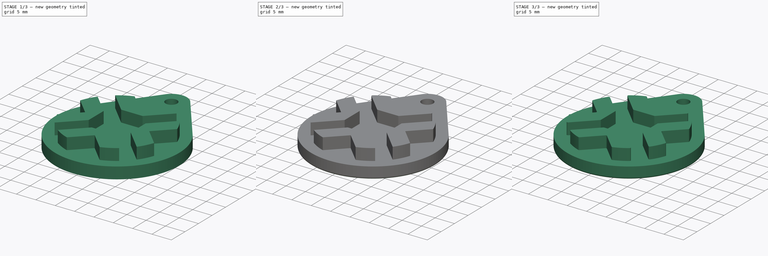
[diagram: build sequence overview — one tinted view per stage of 3, left to right]
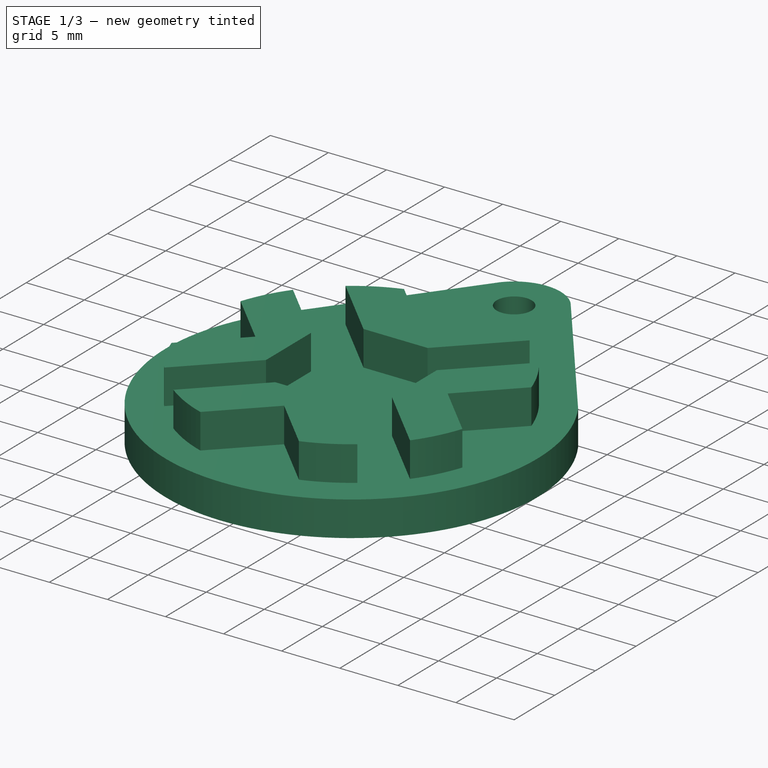
[diagram: stage 1 of 3 — iso view after this stage's code; geometry added in this stage tinted green]
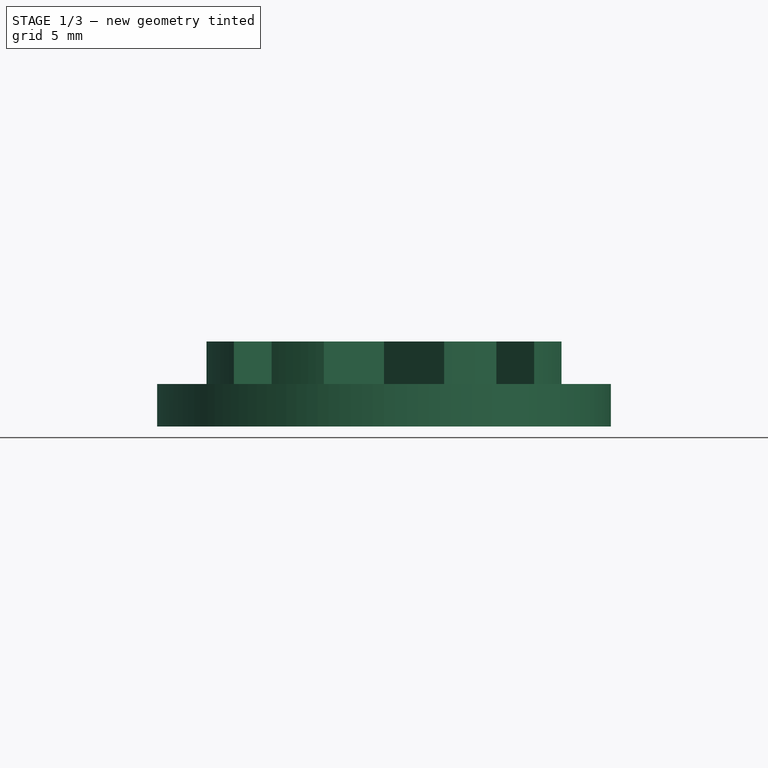
[diagram: stage 1 of 3 — front view after this stage's code; geometry added in this stage tinted green]
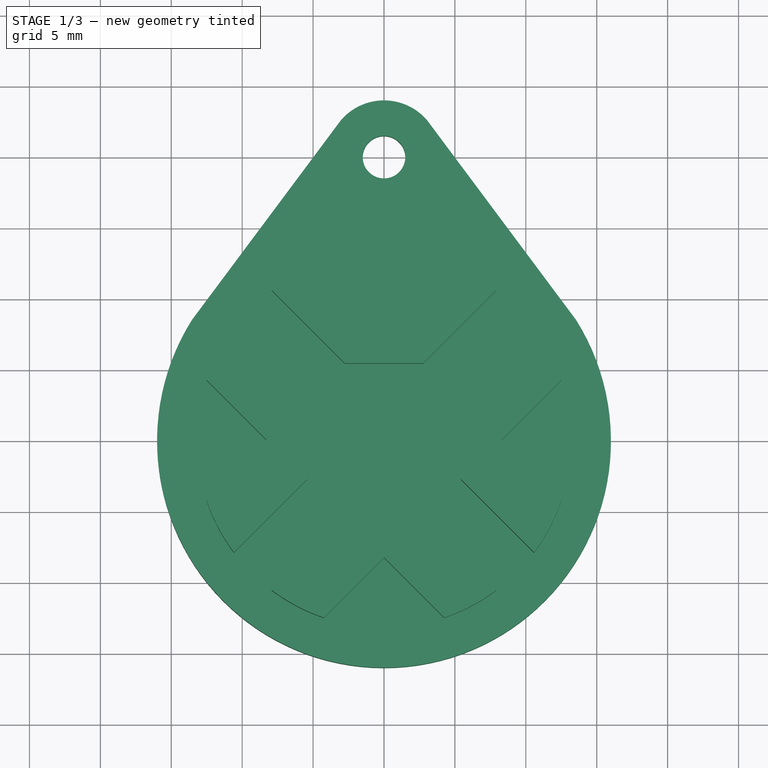
[diagram: stage 1 of 3 — top view after this stage's code; geometry added in this stage tinted green]
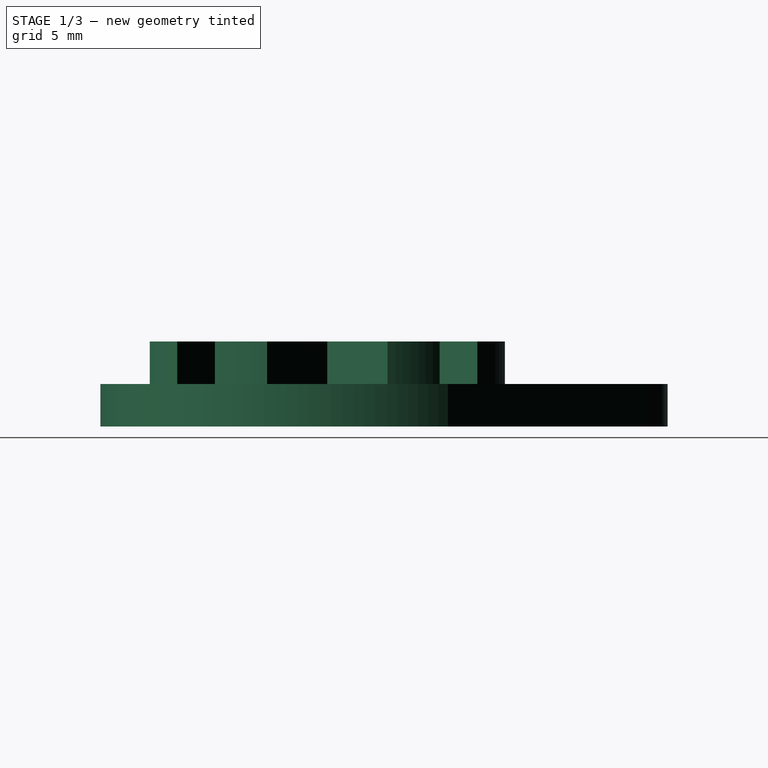
[diagram: stage 1 of 3 — right view after this stage's code; geometry added in this stage tinted green]
FCSTD DOCUMENT  (FreeCAD 0.18R4 (GitTag))
Label: bottom-green
License: All rights reserved
LicenseURL: http://en.wikipedia.org/wiki/All_rights_reserved
objects: PartDesign::Fillet×5, Sketcher::SketchObject×2, PartDesign::Pad×2, Image::ImagePlane×1, PartDesign::PolarPattern×1, PartDesign::Body×1
note: 13 computed .brp shape members not serialized (recipe doc carries the construction recipe); baked Part::Feature solids carry a one-line shape summary decoded from their .brp

FEATURE [Image::ImagePlane] ImagePlane
  XSize = 25
  YSize = 25
FEATURE [Sketcher::SketchObject] Sketch
  MapMode = 5
  Support = -> [XY_Plane]
  sketch-geometry (5):
    g0: LineSegment StartX=-13.5554 StartY=8.5 StartZ=0 EndX=-3.03974 EndY=22.6 EndZ=0
    g1: LineSegment StartX=3.03974 StartY=22.6 StartZ=0 EndX=13.5554 EndY=8.5 EndZ=0
    g2: ArcOfCircle CenterX=0 CenterY=0 CenterZ=0 NormalX=0 NormalY=0 NormalZ=1 AngleXU=0 Radius=16 StartAngle=2.58152 EndAngle=6.84326
    g3: ArcOfCircle CenterX=0 CenterY=20 CenterZ=0 NormalX=0 NormalY=0 NormalZ=1 AngleXU=0 Radius=4 StartAngle=0.707584 EndAngle=2.43401
    g4: Circle CenterX=0 CenterY=20 CenterZ=0 NormalX=0 NormalY=0 NormalZ=1 AngleXU=0 Radius=1.5
  constraints (16):
    c: Coincident(g2,g-1)
    c: Diameter(g2) = 32
    c: DistanceY(g2,g2) = 8.5
    c: DistanceY(g2,g2) = 8.5
    c: PointOnObject(g3,g-2)
    c: Diameter(g3) = 8
    c: DistanceY(g2,g3) = 20
    c: Coincident(g0,g3)
    c: Coincident(g3,g1)
    c: Coincident(g0,g2)
    c: Coincident(g1,g2)
    c: DistanceY(g3,g0) = 2.6
    c: DistanceY(g3,g1) = 2.6
    c: Diameter(g4) = 3
    c: PointOnObject(g4,g-2)
    c: DistanceY(g2,g4) = 20
FEATURE [PartDesign::Pad] Pad
  Length = 3
  Length2 = 100
  Profile = -> Sketch
  Reversed = true
  Type = 0
FEATURE [Sketcher::SketchObject] Sketch001
  MapMode = 5
  Support = -> [Pad]
  sketch-geometry (7):
    g0: LineSegment StartX=-2.76 StartY=5.42 StartZ=0 EndX=2.76 EndY=5.42 EndZ=0
    g1: LineSegment StartX=2.76 StartY=5.42 StartZ=0 EndX=7.92188 EndY=10.5819 EndZ=0
    g2: LineSegment StartX=4.24264 StartY=12.5193 StartZ=0 EndX=0 EndY=8.27664 EndZ=0
    g3: LineSegment StartX=0 StartY=8.27664 StartZ=0 EndX=-4.24264 EndY=12.5193 EndZ=0
    g4: LineSegment StartX=-7.92188 StartY=10.5819 StartZ=0 EndX=-2.76 EndY=5.42 EndZ=0
    g5: ArcOfCircle CenterX=0 CenterY=0 CenterZ=0 NormalX=0 NormalY=0 NormalZ=1 AngleXU=0 Radius=13.2186 StartAngle=1.89754 EndAngle=2.21342
    g6: ArcOfCircle CenterX=0 CenterY=0 CenterZ=0 NormalX=0 NormalY=0 NormalZ=1 AngleXU=0 Radius=13.2186 StartAngle=0.928175 EndAngle=1.24405
  constraints (21):
    c: Coincident(g6,g-1)
    c: Coincident(g5,g6)
    c: Coincident(g4,g0)
    c: Coincident(g4,g5)
    c: Coincident(g3,g5)
    c: Coincident(g3,g2)
    c: Coincident(g2,g6)
    c: Coincident(g6,g1)
    c: Coincident(g1,g0)
    c: Horizontal(g0)
    c: PointOnObject(g2,g-2)
    c: DistanceX(g5,g0) = 2.76
    c: DistanceX(g0,g5) = 2.76
    c: Angle(g-2,g2) = 2.35619
    c: Angle(g3,g-2) = 2.35619
    c: Angle(g-2,g1) = 2.35619
    c: Angle(g4,g-2) = 2.35619
    c: Distance(g4) = 7.3
    c: Distance(g1) = 7.3
    c: Distance(g2) = 6
    c: DistanceY(g5,g0) = 5.42
FEATURE [PartDesign::Pad] Pad001
  BaseFeature = -> Pad
  Length = 3
  Length2 = 100
  Profile = -> Sketch001
  Type = 0
FEATURE [PartDesign::PolarPattern] PolarPattern
  Angle = 360
  Axis = -> Sketch001 [N_Axis]
  BaseFeature = -> Pad001
  Occurrences = 4
  Originals = -> [Pad001]
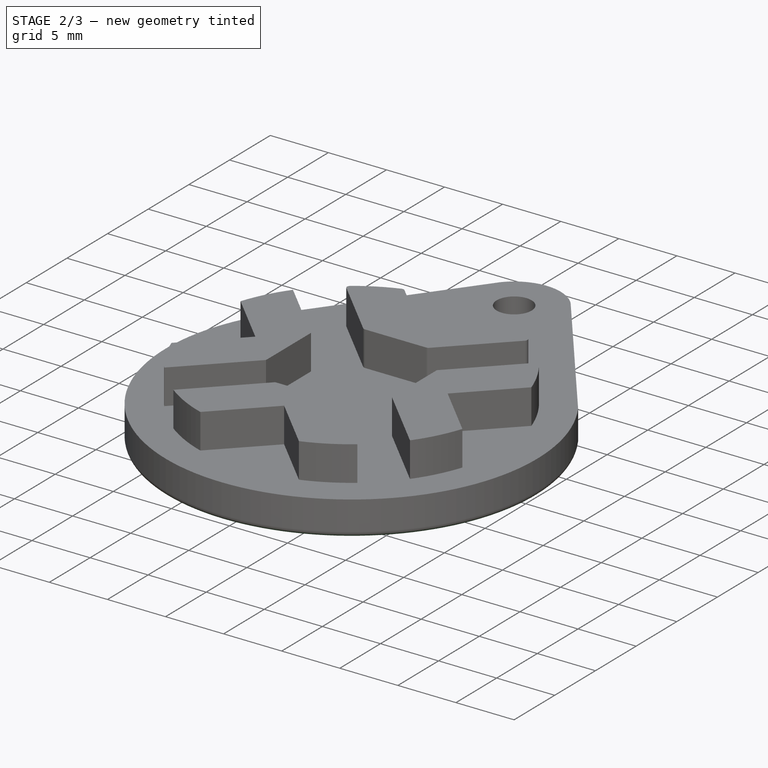
[diagram: stage 2 of 3 — iso view after this stage's code; geometry added in this stage tinted green]
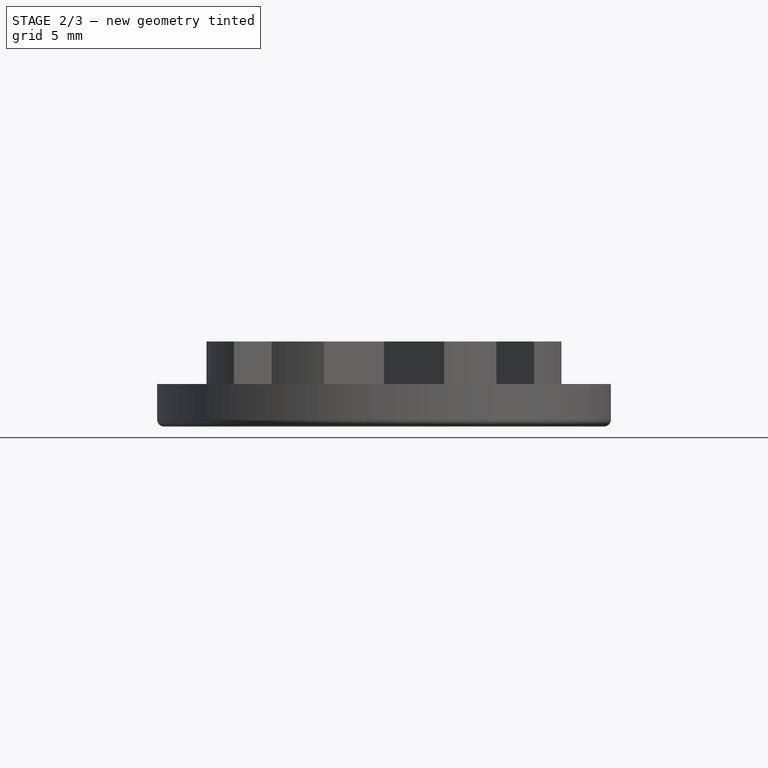
[diagram: stage 2 of 3 — front view after this stage's code; geometry added in this stage tinted green]
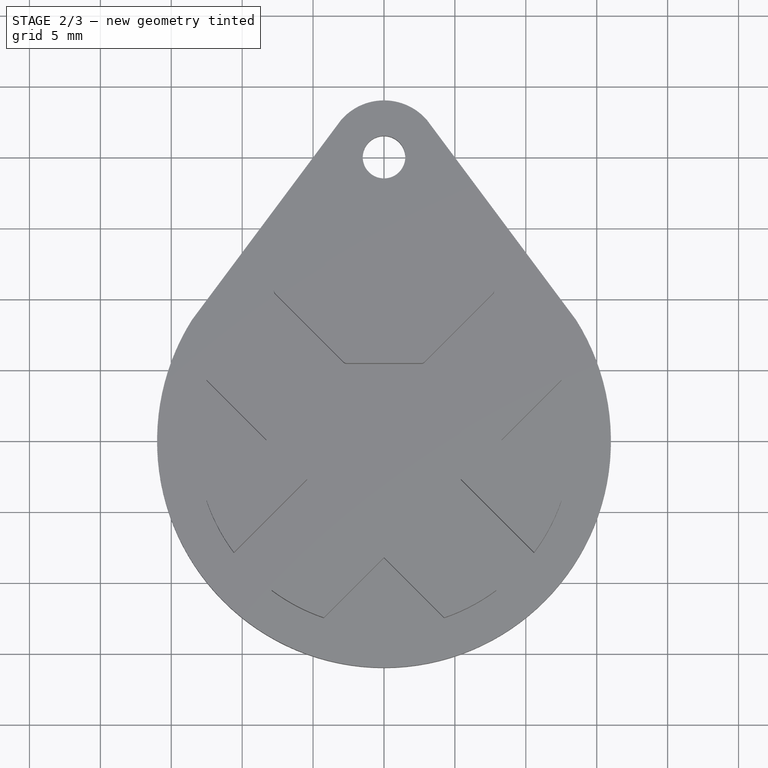
[diagram: stage 2 of 3 — top view after this stage's code; geometry added in this stage tinted green]
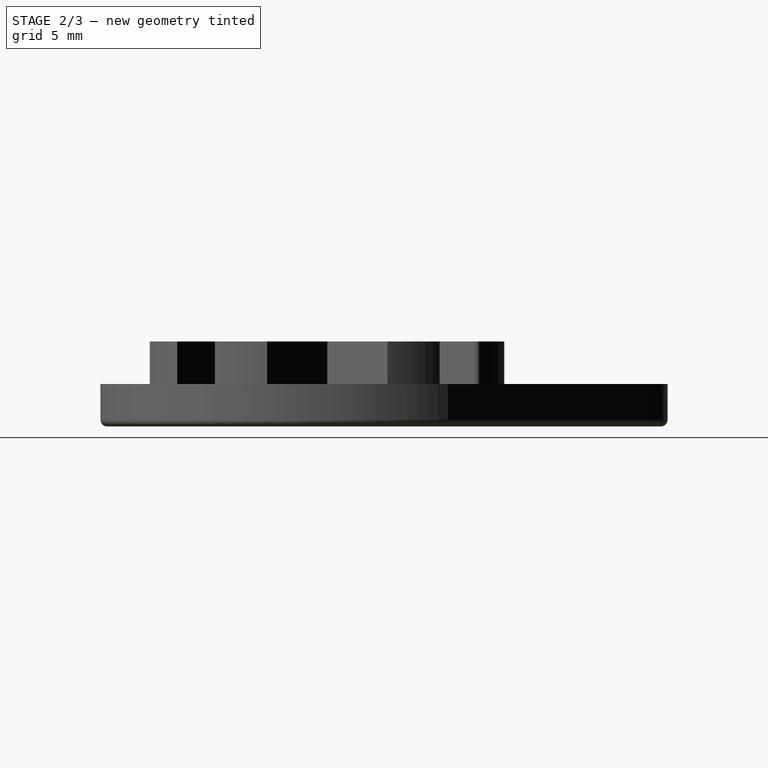
[diagram: stage 2 of 3 — right view after this stage's code; geometry added in this stage tinted green]
FEATURE [PartDesign::Fillet] Fillet
  Base = -> PolarPattern [Edge88,Edge92,Edge96,Edge94,Edge90,Edge86,Edge85]
  BaseFeature = -> PolarPattern
  Radius = 0.3
FEATURE [PartDesign::Fillet] Fillet001
  Base = -> Fillet [Edge76,Edge75,Edge71,Edge73,Edge120]
  BaseFeature = -> Fillet
  Radius = 0.5
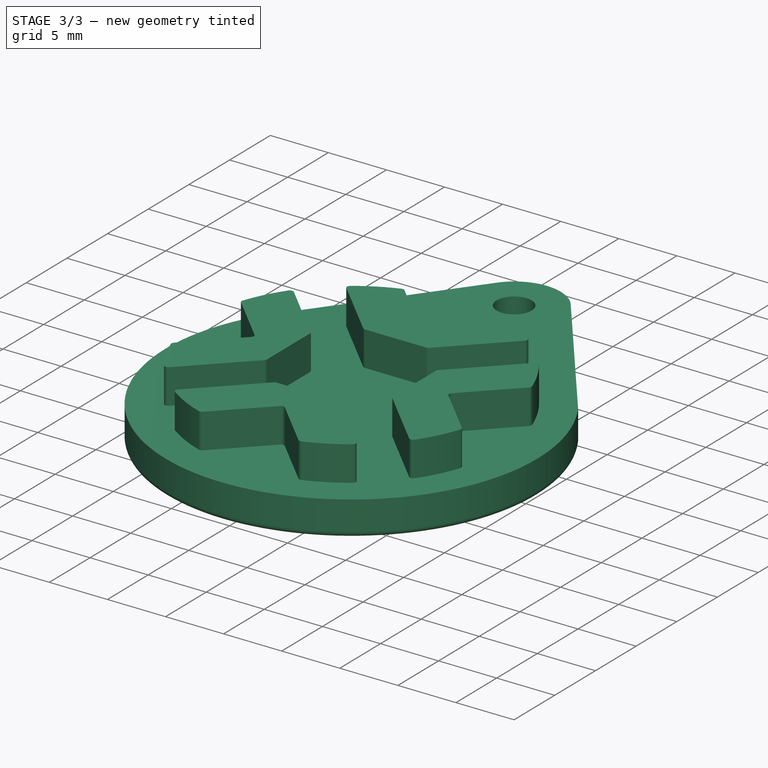
[diagram: stage 3 of 3 — iso view after this stage's code; geometry added in this stage tinted green]
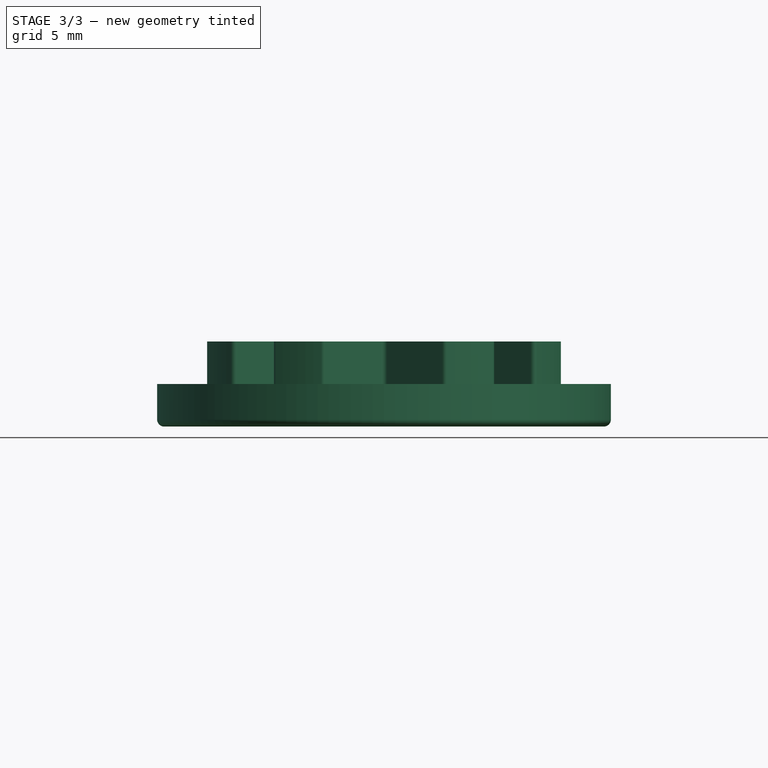
[diagram: stage 3 of 3 — front view after this stage's code; geometry added in this stage tinted green]
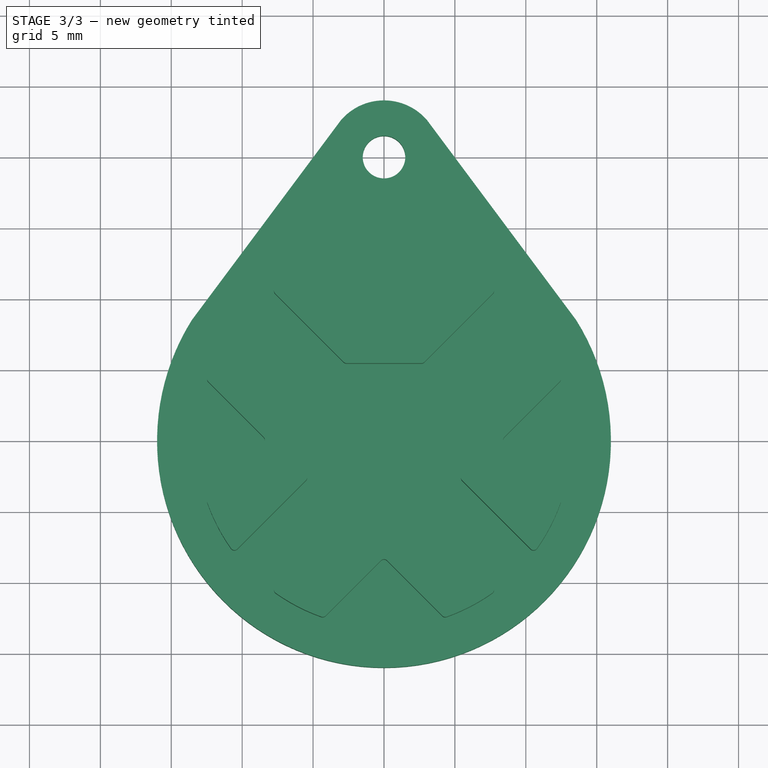
[diagram: stage 3 of 3 — top view after this stage's code; geometry added in this stage tinted green]
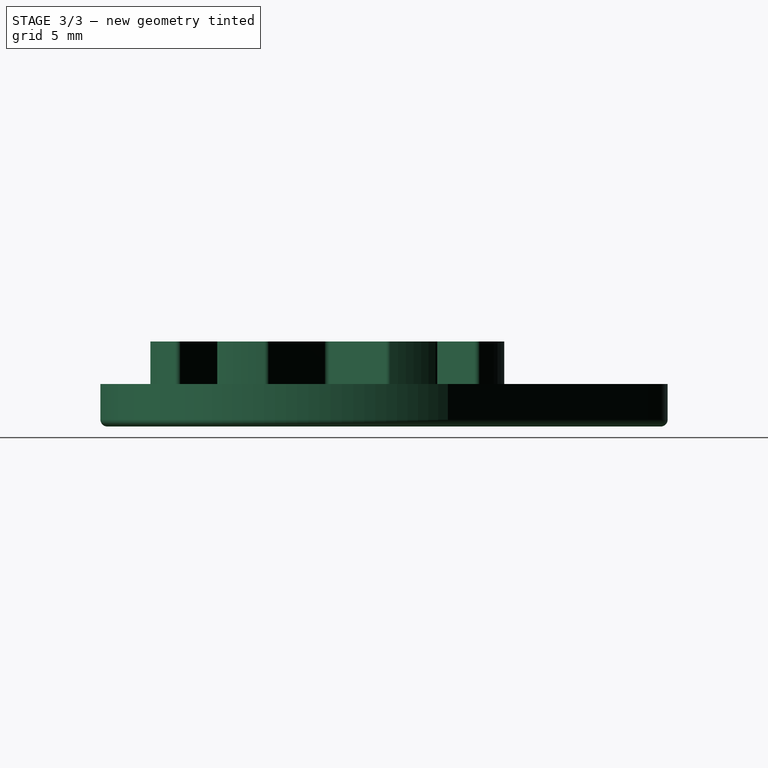
[diagram: stage 3 of 3 — right view after this stage's code; geometry added in this stage tinted green]
FEATURE [PartDesign::Fillet] Fillet002
  Base = -> Fillet001 [Edge109,Edge105,Edge101,Edge100,Edge103,Edge111,Edge107]
  BaseFeature = -> Fillet001
  Radius = 0.3
FEATURE [PartDesign::Fillet] Fillet003
  Base = -> Fillet002 [Edge121,Edge123,Edge115,Edge112,Edge119,Edge117,Edge113]
  BaseFeature = -> Fillet002
  Radius = 0.3
FEATURE [PartDesign::Fillet] Fillet004
  Base = -> Fillet003 [Edge156,Edge154,Edge150,Edge147,Edge152,Edge158,Edge148]
  BaseFeature = -> Fillet003
  Radius = 0.3
FEATURE [PartDesign::Body] Body
  Group = -> [Sketch,Pad,Sketch001,Pad001,PolarPattern,Fillet,Fillet001,Fillet002,Fillet003,Fillet004]
  Origin = -> Origin
  Tip = -> Fillet004
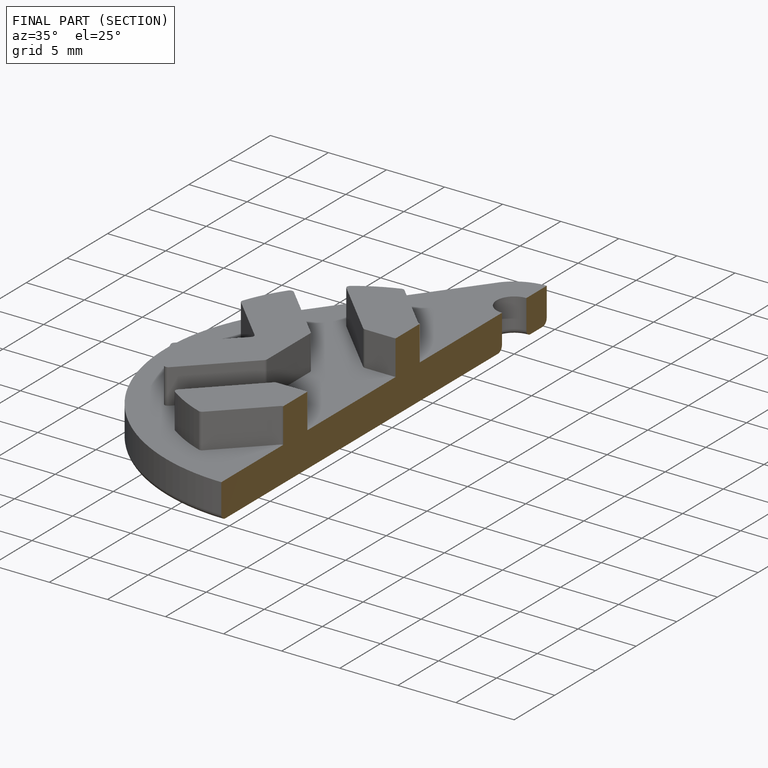
[diagram: finished part — half-section view (interior)]
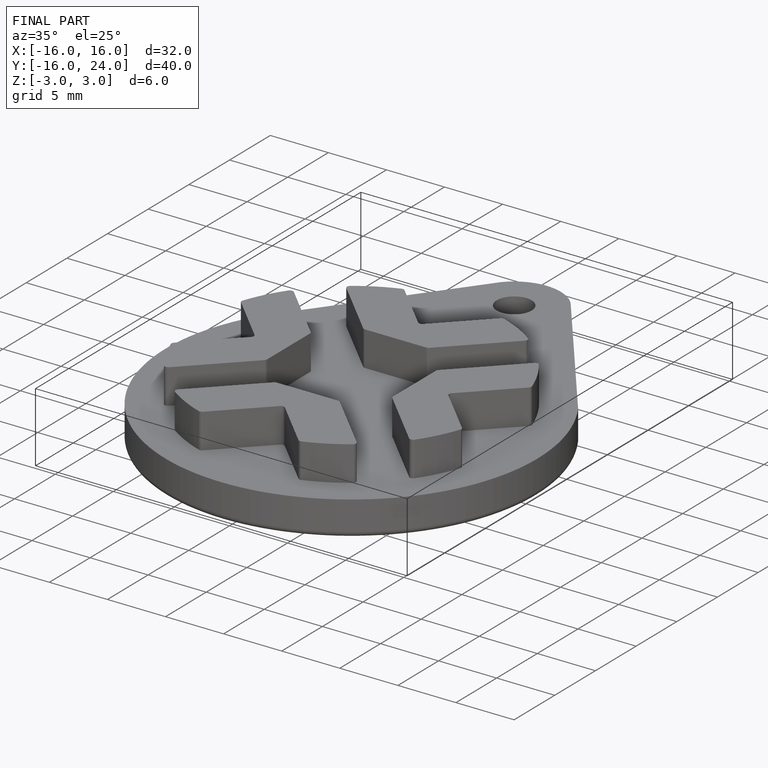
[diagram: finished part — iso view with bounding-box wireframe]
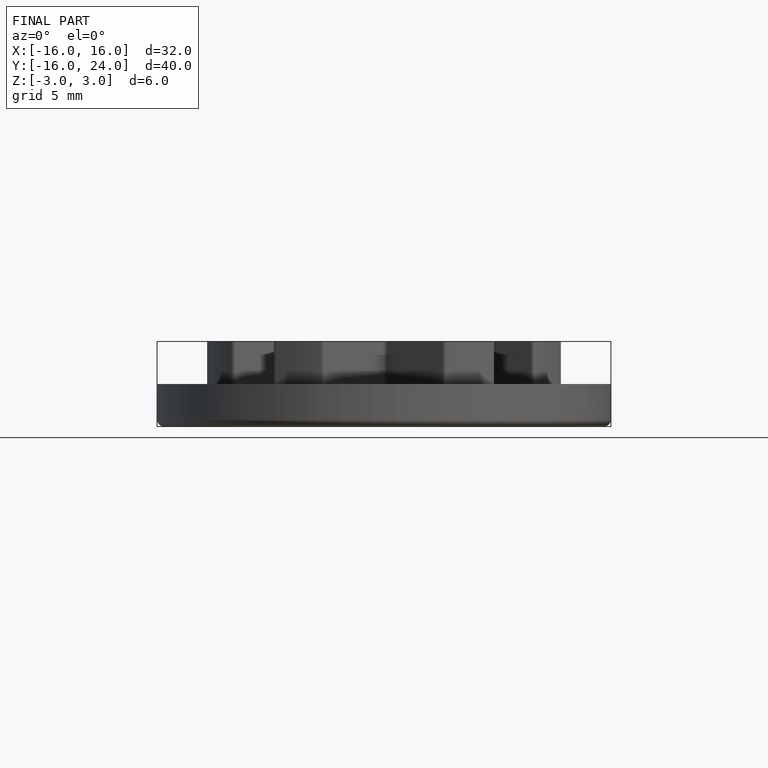
[diagram: finished part — front view with bounding-box wireframe]
